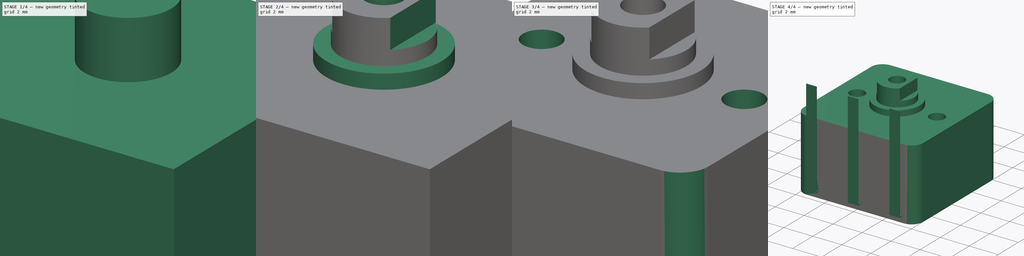
[diagram: build sequence overview — one tinted view per stage of 4, left to right]
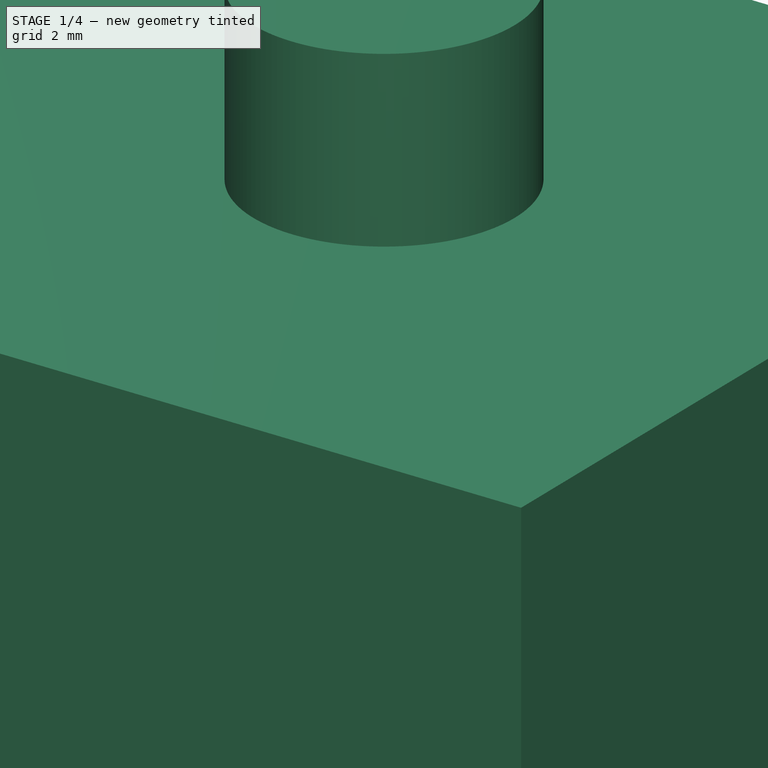
[diagram: stage 1 of 4 — iso view after this stage's code; geometry added in this stage tinted green]
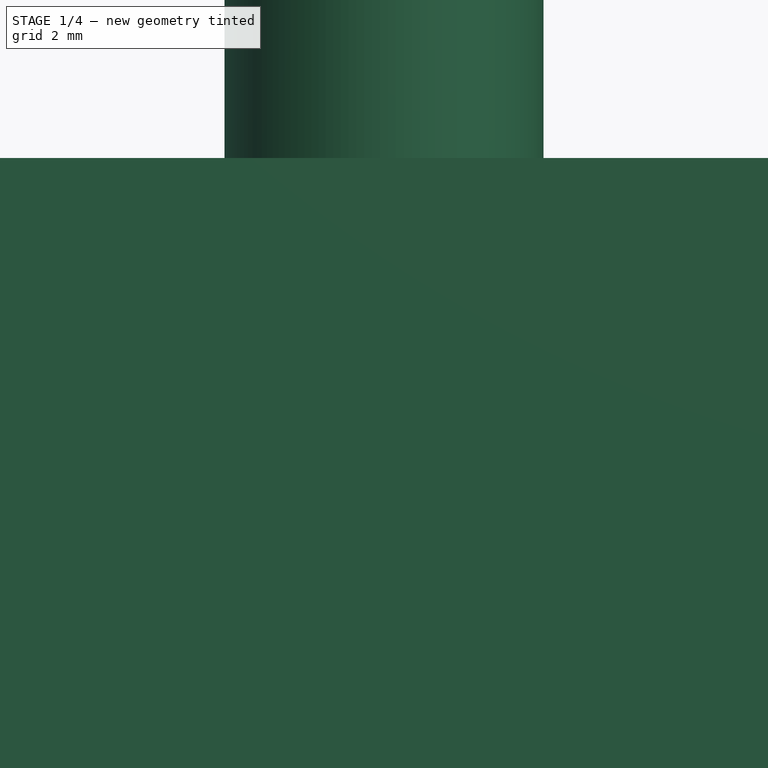
[diagram: stage 1 of 4 — front view after this stage's code; geometry added in this stage tinted green]
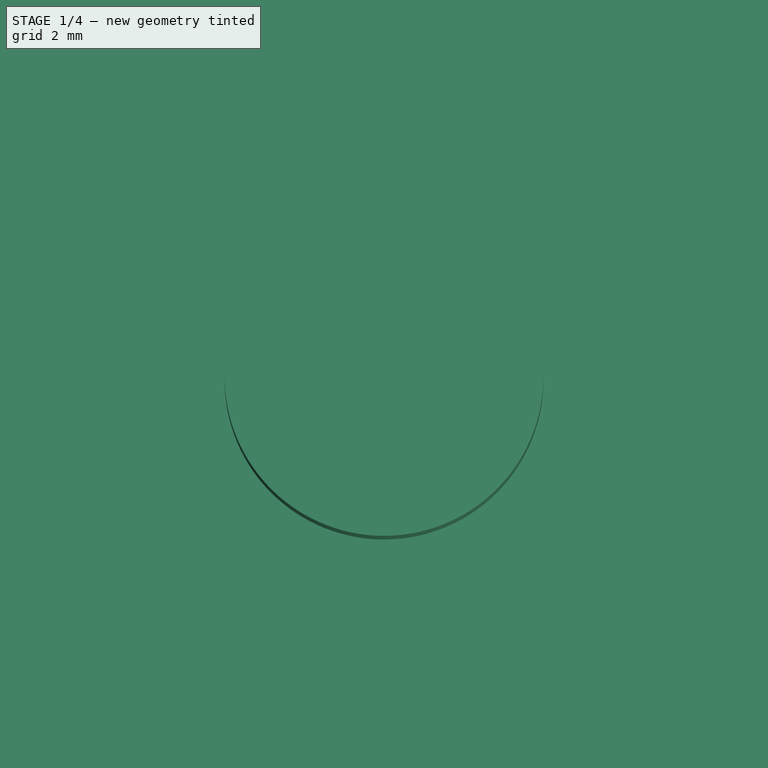
[diagram: stage 1 of 4 — top view after this stage's code; geometry added in this stage tinted green]
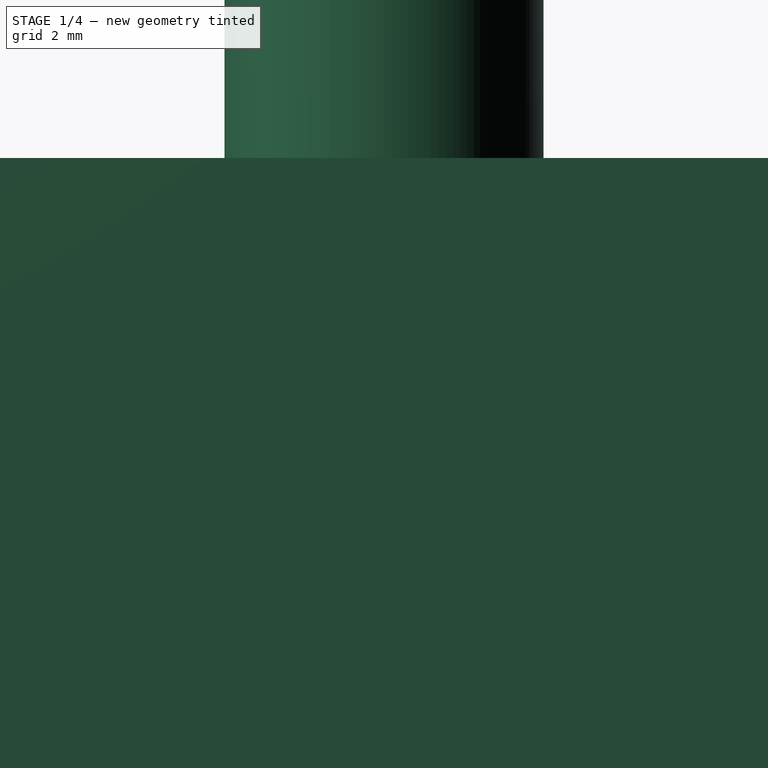
[diagram: stage 1 of 4 — right view after this stage's code; geometry added in this stage tinted green]
FCSTD DOCUMENT  (FreeCAD 0.19R24054 (Git))
Label: VC
License: All rights reserved
LicenseURL: http://en.wikipedia.org/wiki/All_rights_reserved
objects: Sketcher::SketchObject×9, PartDesign::Pad×4, PartDesign::Pocket×3, PartDesign::Point×2, PartDesign::Fillet×1, App::LinkGroup×1, PartDesign::LinearPattern×1, PartDesign::Body×1, Part::FeaturePython×1
note: 30 computed .brp shape members not serialized (recipe doc carries the construction recipe); baked Part::Feature solids carry a one-line shape summary decoded from their .brp

FEATURE [Sketcher::SketchObject] Sketch001
  FullyConstrained = true
  MapMode = 5
  Support = -> [XY_Plane]
  sketch-geometry (4):
    g0: LineSegment StartX=0 StartY=21 StartZ=0 EndX=21 EndY=21 EndZ=0
    g1: LineSegment StartX=21 StartY=21 StartZ=0 EndX=21 EndY=0 EndZ=0
    g2: LineSegment StartX=21 StartY=0 StartZ=0 EndX=0 EndY=0 EndZ=0
    g3: LineSegment StartX=0 StartY=0 StartZ=0 EndX=0 EndY=21 EndZ=0
  constraints (11):
    c: Coincident(g0,g1)
    c: Coincident(g1,g2)
    c: Coincident(g2,g3)
    c: Coincident(g3,g0)
    c: Horizontal(g0)
    c: Horizontal(g2)
    c: Vertical(g1)
    c: Vertical(g3)
    c: Distance(g0) = 21
    c: Distance(g1) = 21
    c: Coincident(g2,g-1)
FEATURE [PartDesign::Pad] Pad
  Direction = (1,1,1)
  Length = 12.5
  Length2 = 100
  Profile = -> Sketch001
  Type = 0
FEATURE [PartDesign::Point] DatumPoint
  AttacherType = Attacher::AttachEnginePoint
  MapMode = 37
  Placement = pos=(10.5,10.5,12.5) rot=(0,0,1;0rad)
  Support = -> [Pad]
FEATURE [Sketcher::SketchObject] Sketch002
  FullyConstrained = false
  MapMode = 5
  Placement = pos=(0,0,12.5) rot=(0,0,1;0rad)
  Support = -> [Pad]
  sketch-geometry (4):
    g0: Circle CenterX=10.4999 CenterY=10.5 CenterZ=0 NormalX=0 NormalY=0 NormalZ=1 AngleXU=0 Radius=3
    g1: GeomPoint X=21 Y=21 Z=0
    g2: GeomPoint X=0 Y=10.4522 Z=0
    g3: GeomPoint X=10.5195 Y=0 Z=0
  constraints (7):
    c: Diameter(g0) = 6
    c: PointOnObject(g2,g-2)
    c: Distance(g2,g0) = 10.5
    c: PointOnObject(g3,g-1)
    c: Distance(g3,g0) = 10.5
    c: DistanceX(g1) = 21
    c: DistanceY(g1) = 21
FEATURE [PartDesign::Pad] Pad001
  BaseFeature = -> Pad
  Direction = (1,1,1)
  Length = 4
  Length2 = 100
  Profile = -> Sketch002
  Type = 0
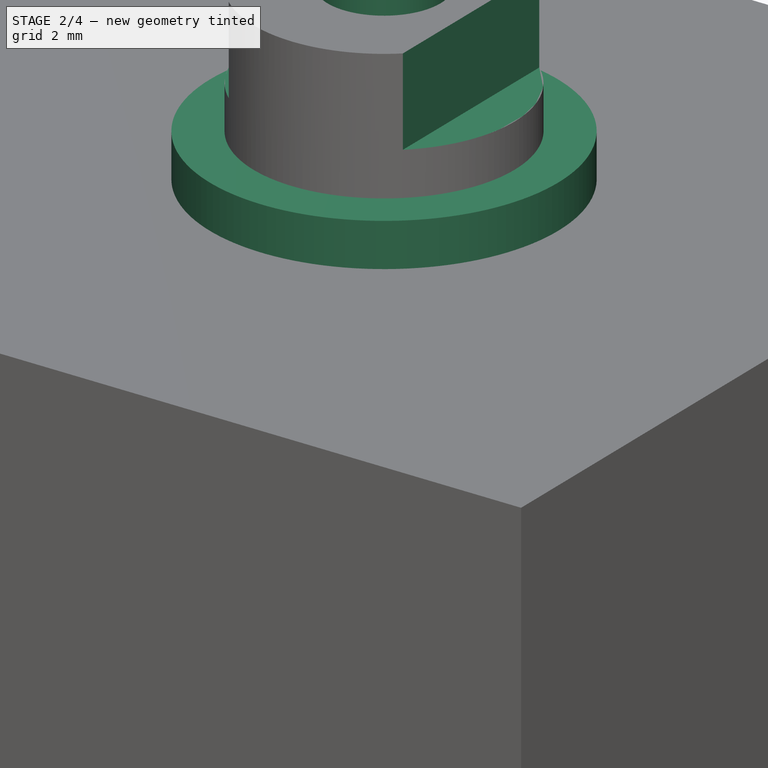
[diagram: stage 2 of 4 — iso view after this stage's code; geometry added in this stage tinted green]
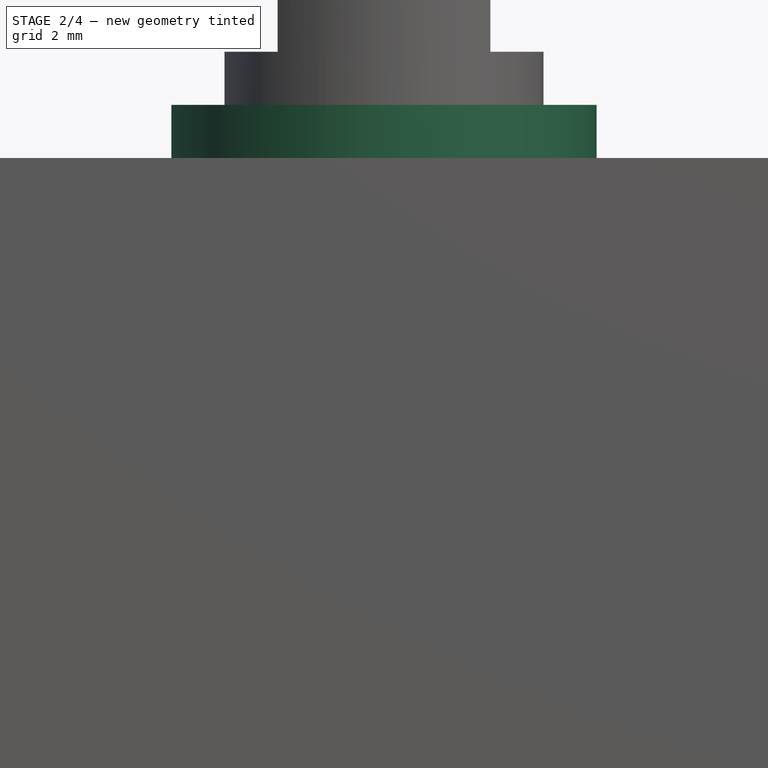
[diagram: stage 2 of 4 — front view after this stage's code; geometry added in this stage tinted green]
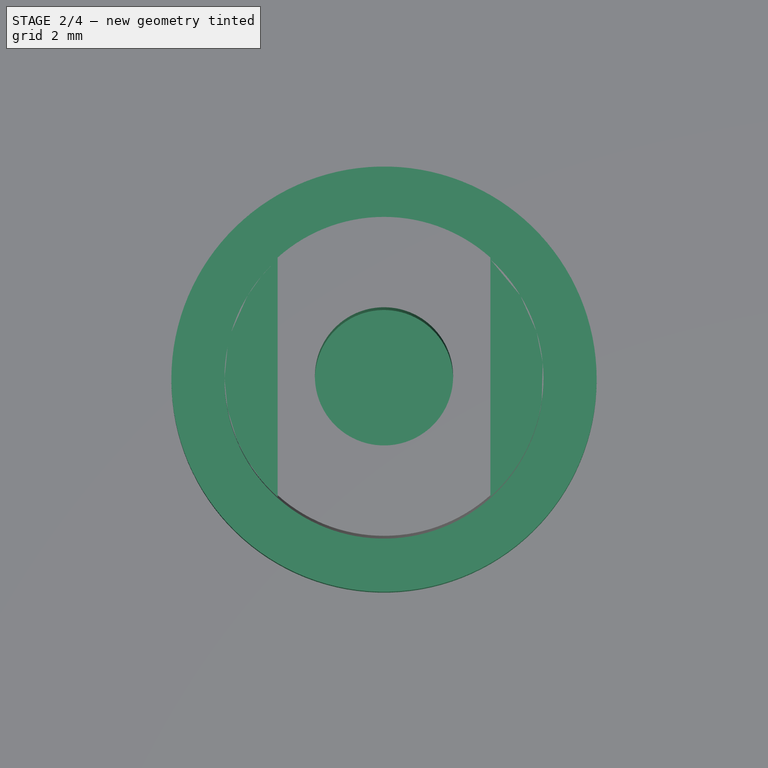
[diagram: stage 2 of 4 — top view after this stage's code; geometry added in this stage tinted green]
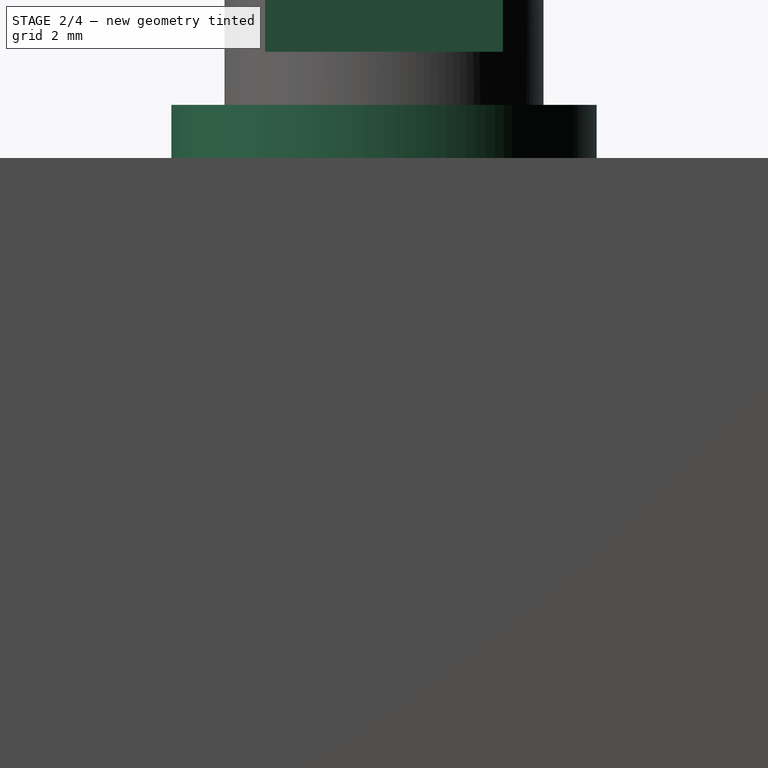
[diagram: stage 2 of 4 — right view after this stage's code; geometry added in this stage tinted green]
FEATURE [Sketcher::SketchObject] Sketch003
  FullyConstrained = false
  MapMode = 5
  Placement = pos=(0,0,12.5) rot=(0,0,1;0rad)
  Support = -> [Pad001]
  sketch-geometry (4):
    g0: Circle CenterX=10.5 CenterY=10.5 CenterZ=0 NormalX=0 NormalY=0 NormalZ=1 AngleXU=0 Radius=4
    g1: GeomPoint X=0 Y=10.5 Z=0
    g2: GeomPoint X=10.5 Y=0 Z=0
    g3: GeomPoint X=10.5 Y=10.5 Z=0
  constraints (5):
    c: Diameter(g0) = 8
    c: PointOnObject(g1,g-2)
    c: PointOnObject(g2,g-1)
    c: Distance(g2,g0) = 10.5
    c: Distance(g1,g0) = 10.5
FEATURE [PartDesign::Pad] Pad002
  BaseFeature = -> Pad001
  Direction = (1,1,1)
  Length = 1
  Length2 = 100
  Profile = -> Sketch003
  Type = 0
FEATURE [Sketcher::SketchObject] Sketch004
  FullyConstrained = true
  MapMode = 5
  Placement = pos=(0,0,16.5) rot=(0,0,1;0rad)
  Support = -> [Pad002]
FEATURE [PartDesign::Point] DatumPoint001
  AttacherType = Attacher::AttachEnginePoint
  MapMode = 37
  Placement = pos=(10.4999,10.5,16.5) rot=(0,0,1;0rad)
  Support = -> [Pad002]
FEATURE [Sketcher::SketchObject] Sketch005
  FullyConstrained = false
  MapMode = 5
  Placement = pos=(0,0,16.5) rot=(0,0,1;0rad)
  Support = -> [Pad002]
  sketch-geometry (10):
    g0: LineSegment StartX=4.5 StartY=15.5844 StartZ=0 EndX=8.5 EndY=15.5844 EndZ=0
    g1: LineSegment StartX=8.5 StartY=15.5844 StartZ=0 EndX=8.5 EndY=5.58444 EndZ=0
    g2: LineSegment StartX=8.5 StartY=5.58444 StartZ=0 EndX=4.5 EndY=5.58444 EndZ=0
    g3: LineSegment StartX=4.5 StartY=5.58444 StartZ=0 EndX=4.5 EndY=15.5844 EndZ=0
    g4: LineSegment StartX=12.5 StartY=15.5794 StartZ=0 EndX=16.5 EndY=15.5794 EndZ=0
    g5: LineSegment StartX=16.5 StartY=15.5794 StartZ=0 EndX=16.5 EndY=5.57937 EndZ=0
    g6: LineSegment StartX=16.5 StartY=5.57937 StartZ=0 EndX=12.5 EndY=5.57937 EndZ=0
    g7: LineSegment StartX=12.5 StartY=5.57937 StartZ=0 EndX=12.5 EndY=15.5794 EndZ=0
    g8: GeomPoint X=10.5 Y=10.5 Z=0
    g9: GeomPoint X=10.5 Y=10.5 Z=0
  constraints (25):
    c: Coincident(g0,g1)
    c: Coincident(g1,g2)
    c: Coincident(g2,g3)
    c: Coincident(g3,g0)
    c: Horizontal(g0)
    c: Horizontal(g2)
    c: Vertical(g1)
    c: Vertical(g3)
    c: Coincident(g4,g5)
    c: Coincident(g5,g6)
    c: Coincident(g6,g7)
    c: Coincident(g7,g4)
    c: Horizontal(g4)
    c: Horizontal(g6)
    c: Vertical(g5)
    c: Vertical(g7)
    c: Equal(g1,g7)
    c: DistanceX(g0,g4) = 4
    c: DistanceX(g0,g0) = 4
    c: DistanceX(g4,g4) = 4
    c: DistanceY(g5,g5) = 10
    c: Distance(g8,g7) = 2
    c: DistanceX(g9) = 10.5
    c: DistanceY(g9) = 10.5
    c: Coincident(g9,g8)
FEATURE [PartDesign::Pocket] Pocket
  BaseFeature = -> Pad002
  Length = 2
  Length2 = 100
  Profile = -> Sketch005
  Type = 0
FEATURE [Sketcher::SketchObject] Sketch006
  FullyConstrained = false
  MapMode = 5
  Placement = pos=(0,0,16.5) rot=(0,0,1;0rad)
  Support = -> [Pocket]
  sketch-geometry (2):
    g0: GeomPoint X=10.5 Y=10.5 Z=0
    g1: Circle CenterX=10.5 CenterY=10.5 CenterZ=0 NormalX=0 NormalY=0 NormalZ=1 AngleXU=0 Radius=1.3
  constraints (2):
    c: Coincident(g1,g0)
    c: Diameter(g1) = 2.6
FEATURE [PartDesign::Pocket] Pocket001
  BaseFeature = -> Pocket
  Length = 3
  Length2 = 100
  Profile = -> Sketch006
  Type = 0
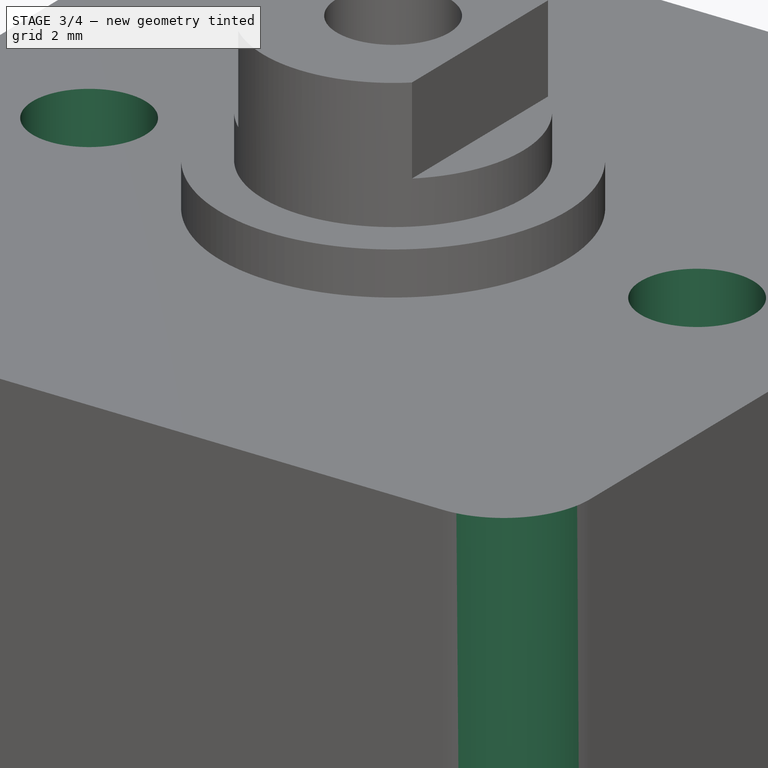
[diagram: stage 3 of 4 — iso view after this stage's code; geometry added in this stage tinted green]
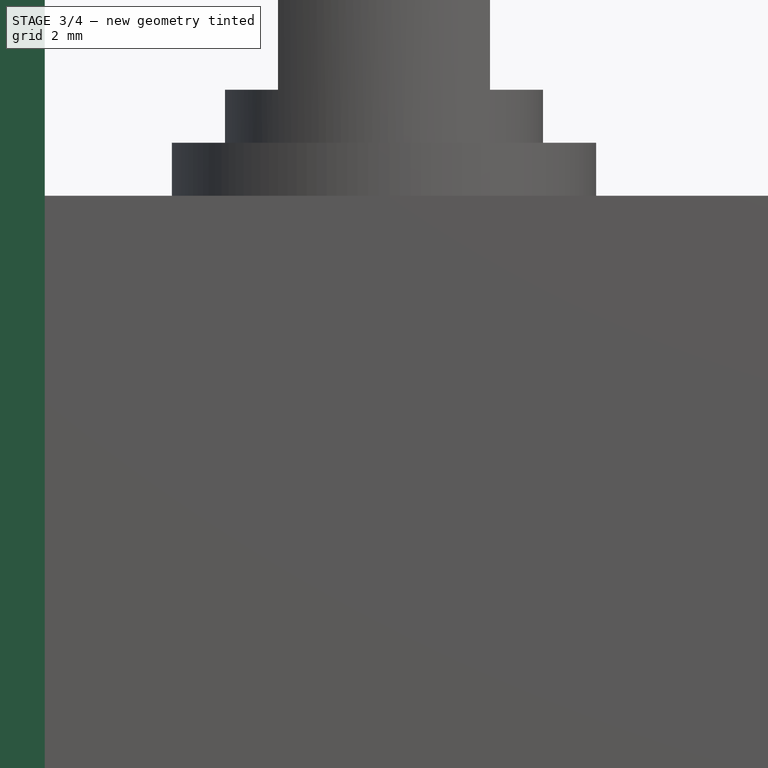
[diagram: stage 3 of 4 — front view after this stage's code; geometry added in this stage tinted green]
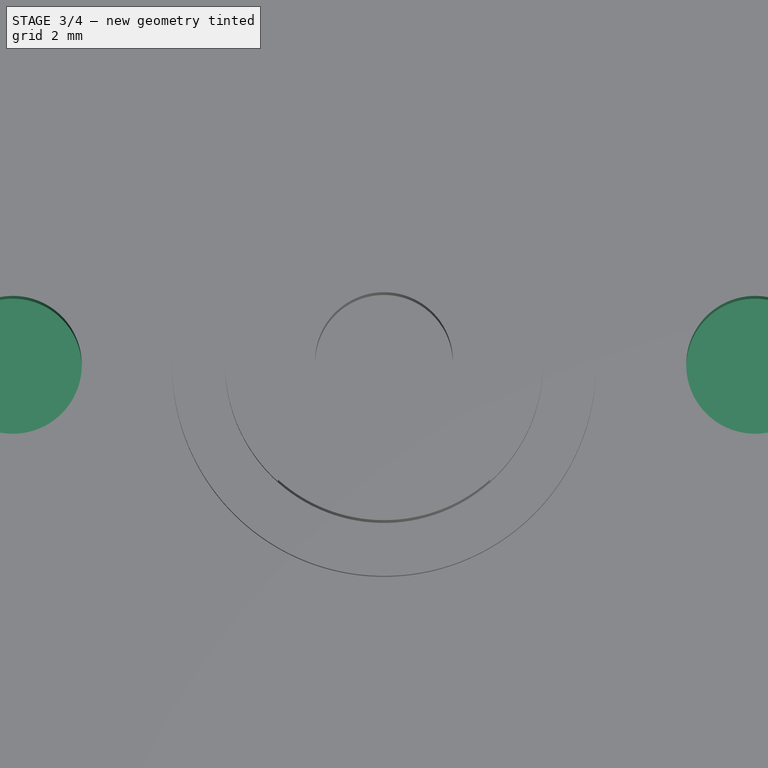
[diagram: stage 3 of 4 — top view after this stage's code; geometry added in this stage tinted green]
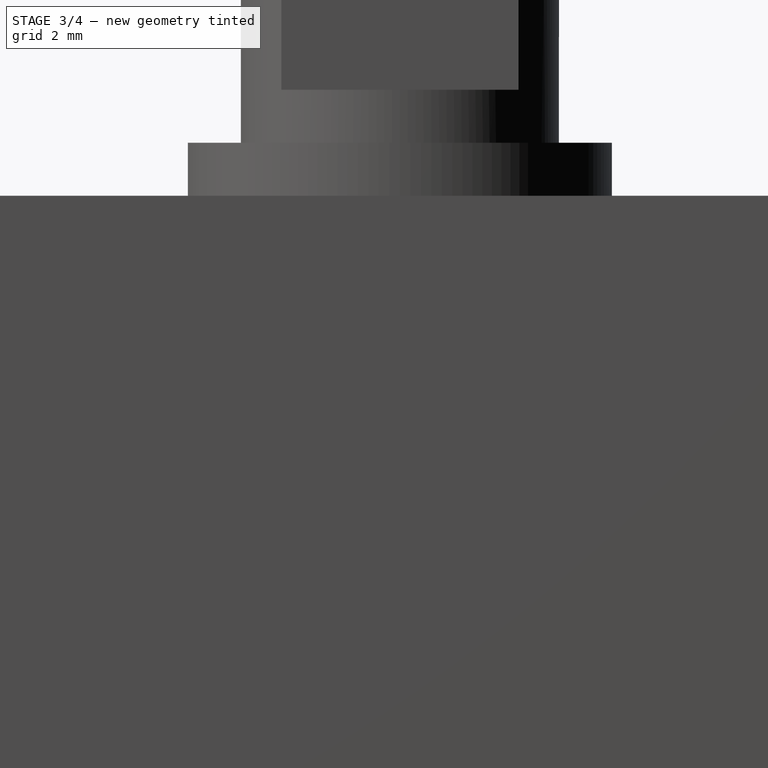
[diagram: stage 3 of 4 — right view after this stage's code; geometry added in this stage tinted green]
FEATURE [PartDesign::Fillet] Fillet
  Base = -> Pocket001 [Edge8,Edge5,Edge2,Edge1]
  BaseFeature = -> Pocket001
  Radius = 2
  SupportTransform = false
FEATURE [Sketcher::SketchObject] Sketch007
  FullyConstrained = false
  MapMode = 5
  Placement = pos=(0,0,12.5) rot=(0,0,1;0rad)
  Support = -> [Fillet]
  sketch-geometry (7):
    g0: Circle CenterX=3.5 CenterY=10.5 CenterZ=0 NormalX=0 NormalY=0 NormalZ=1 AngleXU=0 Radius=1.3
    g1: Circle CenterX=17.5 CenterY=10.5 CenterZ=0 NormalX=0 NormalY=0 NormalZ=1 AngleXU=0 Radius=1.3
    g2: GeomPoint X=10.5 Y=10.4988 Z=0
    g3: GeomPoint X=10.5 Y=10.4988 Z=0
    g4: GeomPoint X=10.5 Y=-0.00122226 Z=0
    g5: GeomPoint X=0 Y=10.5 Z=0
    g6: GeomPoint X=10.5 Y=10.4988 Z=0
  constraints (13):
    c: Diameter(g0) = 2.6
    c: Diameter(g1) = 2.6
    c: Horizontal(g0,g1)
    c: Distance(g0,g1) = 14
    c: Coincident(g3,g2)
    c: Distance(g-1,g4) = 10.5
    c: PointOnObject(g5,g-2)
    c: Distance(g5,g-1) = 10.5
    c: Coincident(g6,g2)
    c: Distance(g2,g4) = 10.5
    c: Distance(g0,g-1) = 10.5
    c: Distance(g2,g5) = 10.5
    c: Distance(g2,g1) = 7
FEATURE [App::LinkGroup] LinkGroup  label="PIN2"
  LinkMode = 0
FEATURE [PartDesign::Pocket] Pocket002
  BaseFeature = -> Fillet
  Length = 3
  Length2 = 100
  Profile = -> Sketch007
  Type = 0
FEATURE [Sketcher::SketchObject] Sketch
  AttachmentOffset = pos=(0,0,3.2) rot=(0,0,1;0rad)
  FullyConstrained = false
  MapMode = 5
  Placement = pos=(3.2,-7e-16,7e-16) rot=(0.57735,0.57735,0.57735;2.0944rad)
  Support = -> [YZ_Plane]
  sketch-geometry (6):
    g0: LineSegment StartX=-0.6 StartY=17.9 StartZ=0 EndX=-0.5 EndY=17.9 EndZ=0
    g1: LineSegment StartX=-0.5 StartY=17.9 StartZ=0 EndX=-0.5 EndY=1.20266 EndZ=0
    g2: LineSegment StartX=-0.6 StartY=1 StartZ=0 EndX=-0.6 EndY=17.9 EndZ=0
    g3: LineSegment StartX=-0.6 StartY=1 StartZ=0 EndX=0 EndY=1 EndZ=0
    g4: LineSegment StartX=-0.5 StartY=1.20266 StartZ=0 EndX=0 EndY=1.20266 EndZ=0
    g5: LineSegment StartX=0 StartY=1.20266 StartZ=0 EndX=0 EndY=1 EndZ=0
  constraints (16):
    c: Horizontal(g0)
    c: Coincident(g1,g0)
    c: Vertical(g1)
    c: Coincident(g2,g0)
    c: Vertical(g2)
    c: DistanceX(g0,g0) = 0.1
    c: Coincident(g3,g2)
    c: Horizontal(g3)
    c: Horizontal(g4)
    c: Coincident(g5,g4)
    c: Coincident(g1,g4)
    c: DistanceX(g4) = 0
    c: DistanceY(g4) = 1.20266
    c: DistanceX(g3) = 0
    c: DistanceY(g3) = 1
    c: DistanceX(g1,g4) = 0.5
FEATURE [PartDesign::Pad] Pad003
  BaseFeature = -> Pocket002
  Direction = (1,1,1)
  Length = 1.8
  Length2 = 100
  Midplane = true
  Profile = -> Sketch
  Type = 0
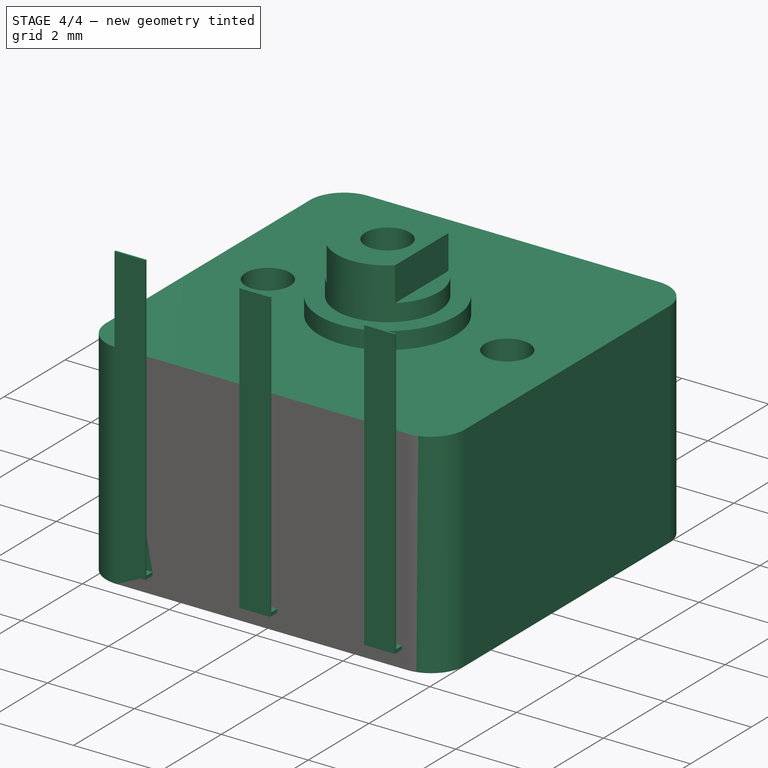
[diagram: stage 4 of 4 — iso view after this stage's code; geometry added in this stage tinted green]
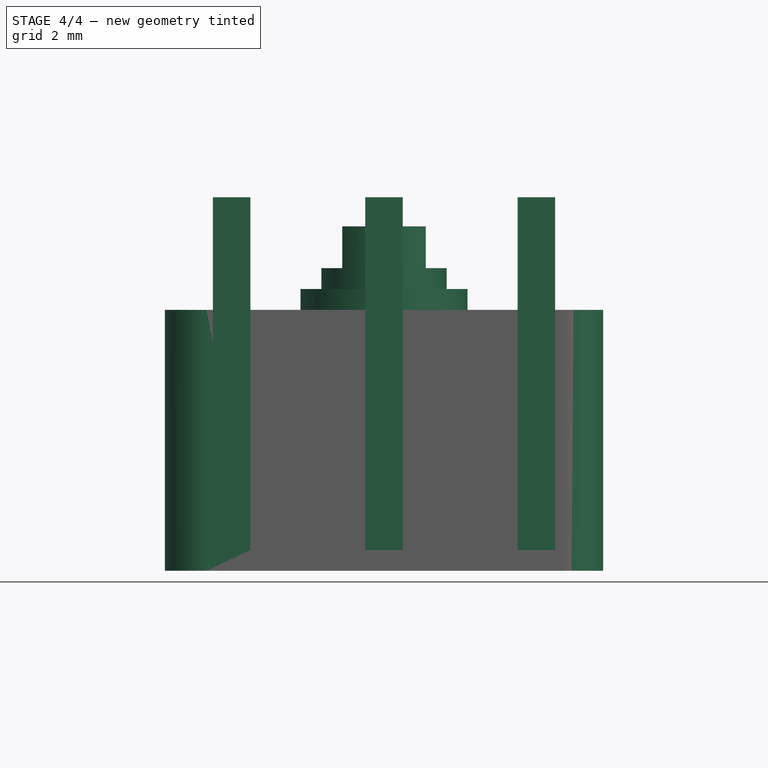
[diagram: stage 4 of 4 — front view after this stage's code; geometry added in this stage tinted green]
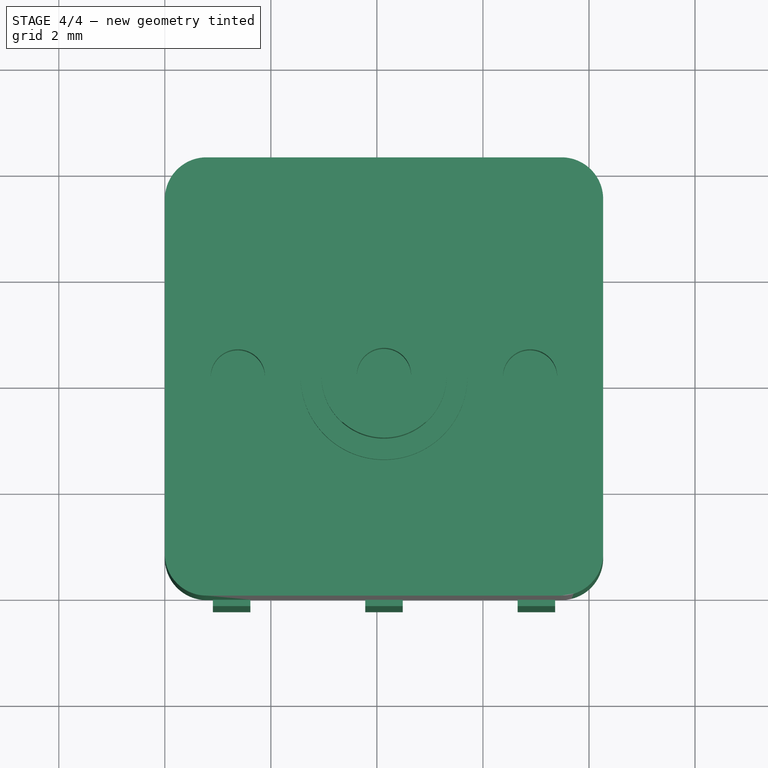
[diagram: stage 4 of 4 — top view after this stage's code; geometry added in this stage tinted green]
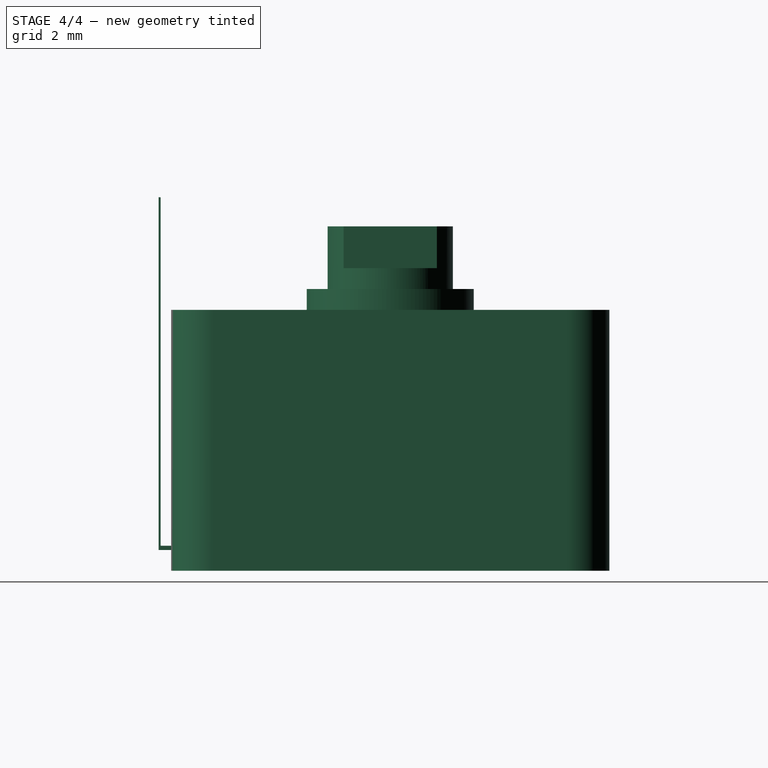
[diagram: stage 4 of 4 — right view after this stage's code; geometry added in this stage tinted green]
FEATURE [PartDesign::LinearPattern] LinearPattern
  BaseFeature = -> Pad003
  Direction = -> X_Axis
  Length = 14.6
  Occurrences = 3
  Originals = -> [Pad003]
FEATURE [Sketcher::SketchObject] Sketch008
  FullyConstrained = true
  MapMode = 5
  Placement = pos=(0,0,0) rot=(1,0,0;1.5708rad)
  Support = -> [LinearPattern]
FEATURE [PartDesign::Body] Body
  Group = -> [Sketch001,Pad,DatumPoint,Sketch002,Pad001,Sketch003,Pad002,Sketch004,DatumPoint001,Sketch005,Pocket,Sketch006,Pocket001,Fillet,Sketch007,Pocket002,Sketch,Pad003,LinearPattern,Sketch008]
  Origin = -> Origin
  Tip = -> LinearPattern
FEATURE [Part::FeaturePython] Clone  label="Body001"  # Draft clone (typed FeaturePython)
  AttacherType = Attacher::AttachEngine3D
  Fuse = false
  Objects = -> [Body]
  Scale = (0.3937,0.3937,0.3937)
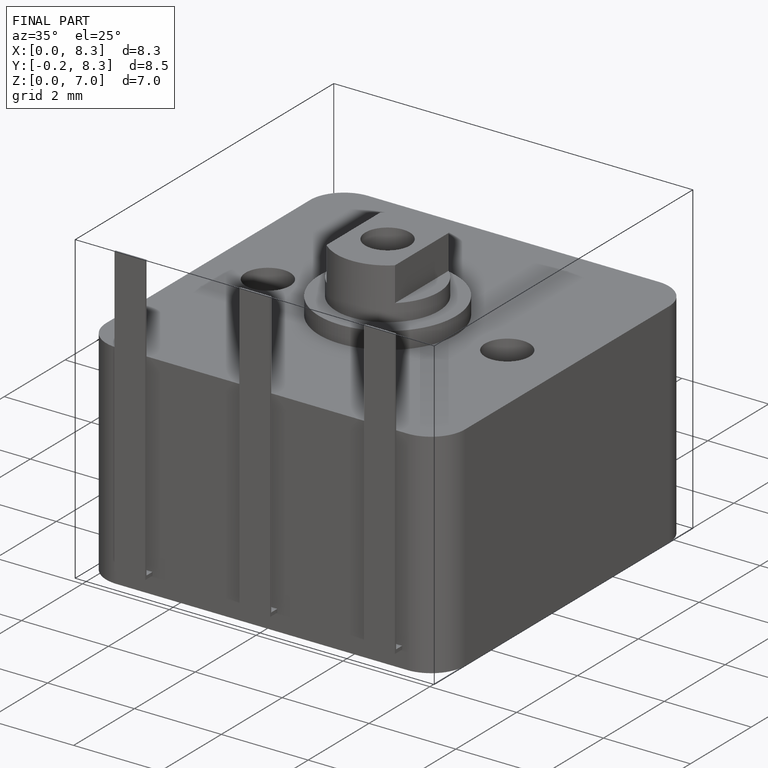
[diagram: finished part — iso view with bounding-box wireframe]
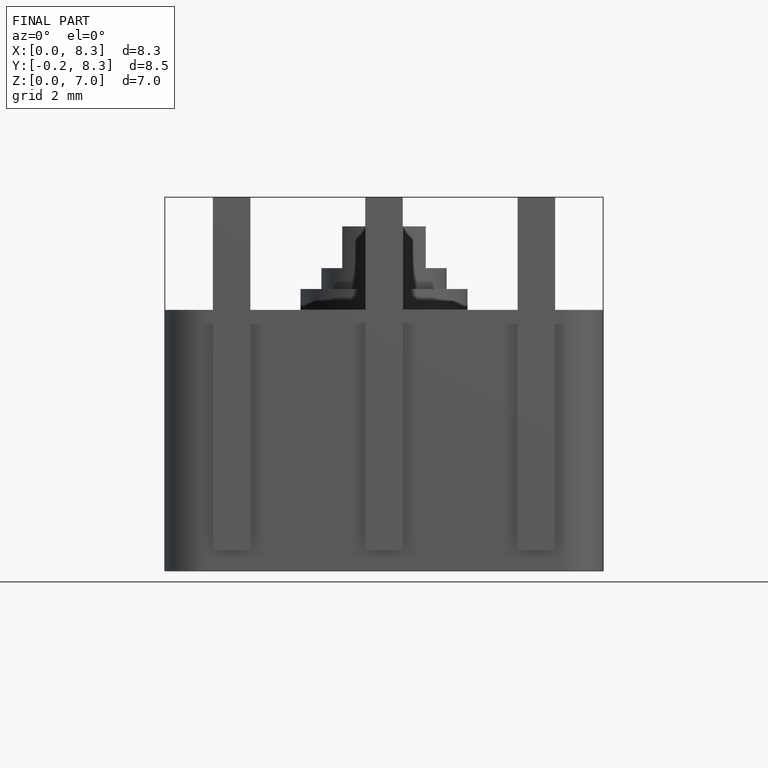
[diagram: finished part — front view with bounding-box wireframe]
